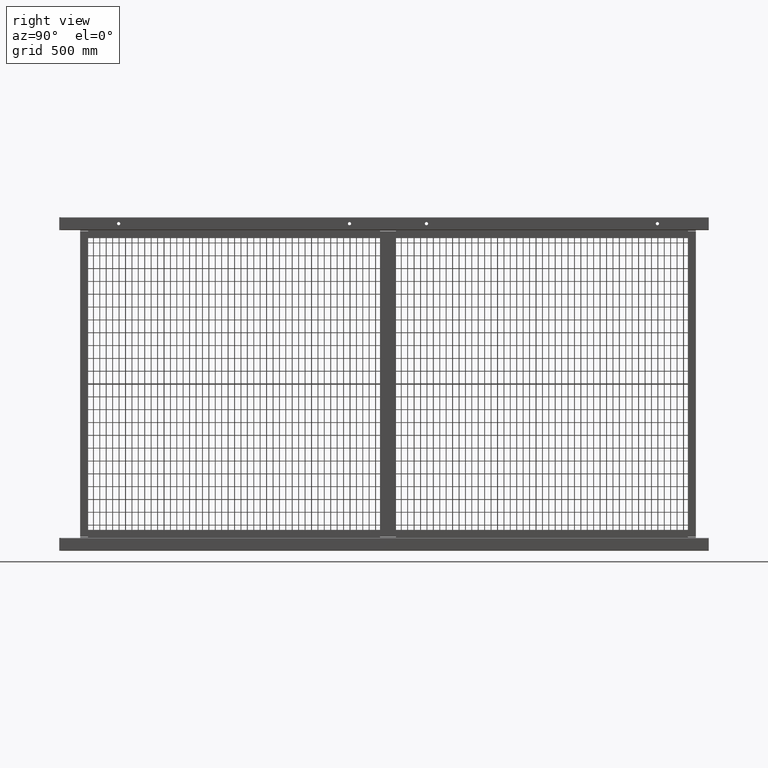
[diagram: clean part render]
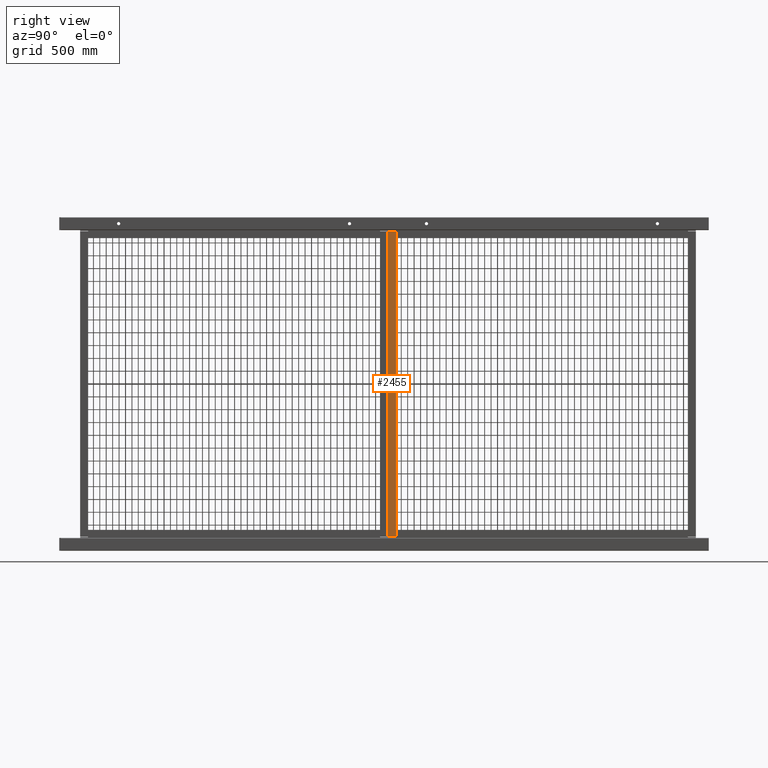
[diagram: same view with one face highlighted and labeled with its STEP entity id]
A machine part, right view. The second image highlights one B-rep face of the part: STEP entity #2455.
In plain terms, the highlighted planar face has unit normal (1, 0, -0).
Its self-contained STEP definition (entity closure, byte-faithful):
#2278=CARTESIAN_POINT('',(0.0,0.0,-23.812500000000000));
#2279=VERTEX_POINT('',#2278);
#2286=CARTESIAN_POINT('',(-1.250000000000000,0.0,-23.812500000000000));
#2287=VERTEX_POINT('',#2286);
#2288=CARTESIAN_POINT('',(-1.250000000000000,0.0,-23.812500000000000));
#2289=DIRECTION('',(1.0,0.0,0.0));
#2290=VECTOR('',#2289,1.250000000000000);
#2291=LINE('',#2288,#2290);
#2292=EDGE_CURVE('',#2287,#2279,#2291,.T.);
#2389=CARTESIAN_POINT('',(0.0,0.0,23.812500000000000));
#2390=VERTEX_POINT('',#2389);
#2397=CARTESIAN_POINT('',(0.0,0.0,23.812500000000000));
#2398=DIRECTION('',(0.0,0.0,-1.0));
#2399=VECTOR('',#2398,47.625000000000000);
#2400=LINE('',#2397,#2399);
#2401=EDGE_CURVE('',#2390,#2279,#2400,.T.);
#2432=CARTESIAN_POINT('',(0.0,0.0,0.0));
#2433=DIRECTION('',(0.0,-1.0,0.0));
#2434=DIRECTION('',(0.0,0.0,-1.0));
#2435=AXIS2_PLACEMENT_3D('',#2432,#2433,#2434);
#2436=PLANE('',#2435);
#2437=CARTESIAN_POINT('',(-1.250000000000000,0.0,23.812500000000000));
#2438=VERTEX_POINT('',#2437);
#2439=CARTESIAN_POINT('',(0.0,0.0,23.812500000000000));
#2440=DIRECTION('',(-1.0,0.0,0.0));
#2441=VECTOR('',#2440,1.250000000000000);
#2442=LINE('',#2439,#2441);
#2443=EDGE_CURVE('',#2390,#2438,#2442,.T.);
#2444=ORIENTED_EDGE('',*,*,#2443,.T.);
#2445=CARTESIAN_POINT('',(-1.250000000000000,0.0,23.812500000000000));
#2446=DIRECTION('',(0.0,0.0,-1.0));
#2447=VECTOR('',#2446,47.625000000000000);
#2448=LINE('',#2445,#2447);
#2449=EDGE_CURVE('',#2438,#2287,#2448,.T.);
#2450=ORIENTED_EDGE('',*,*,#2449,.T.);
#2451=ORIENTED_EDGE('',*,*,#2292,.T.);
#2452=ORIENTED_EDGE('',*,*,#2401,.F.);
#2453=EDGE_LOOP('',(#2444,#2450,#2451,#2452));
#2454=FACE_OUTER_BOUND('',#2453,.T.);
#2455=ADVANCED_FACE('',(#2454),#2436,.T.);